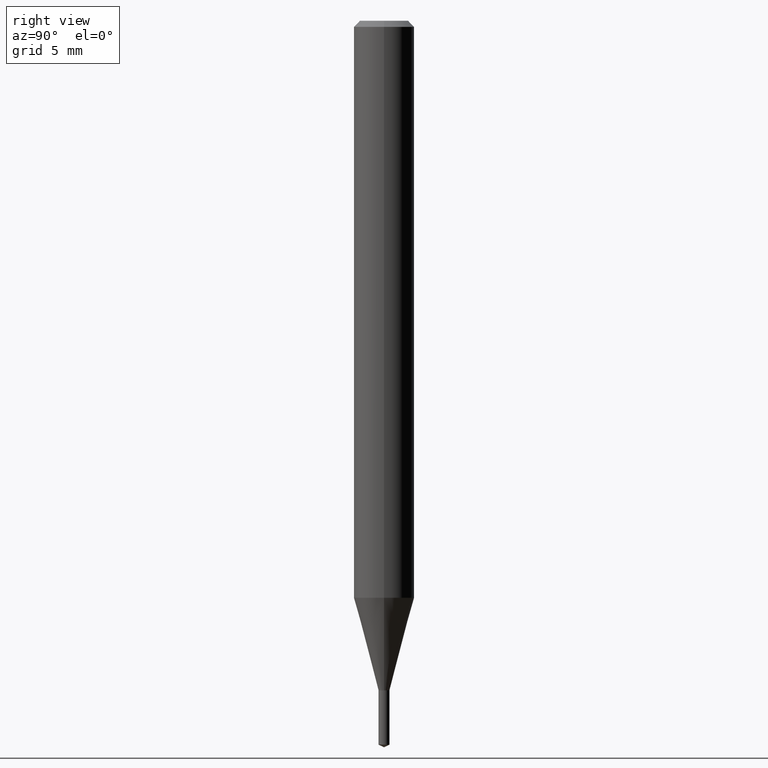
[diagram: clean part render]
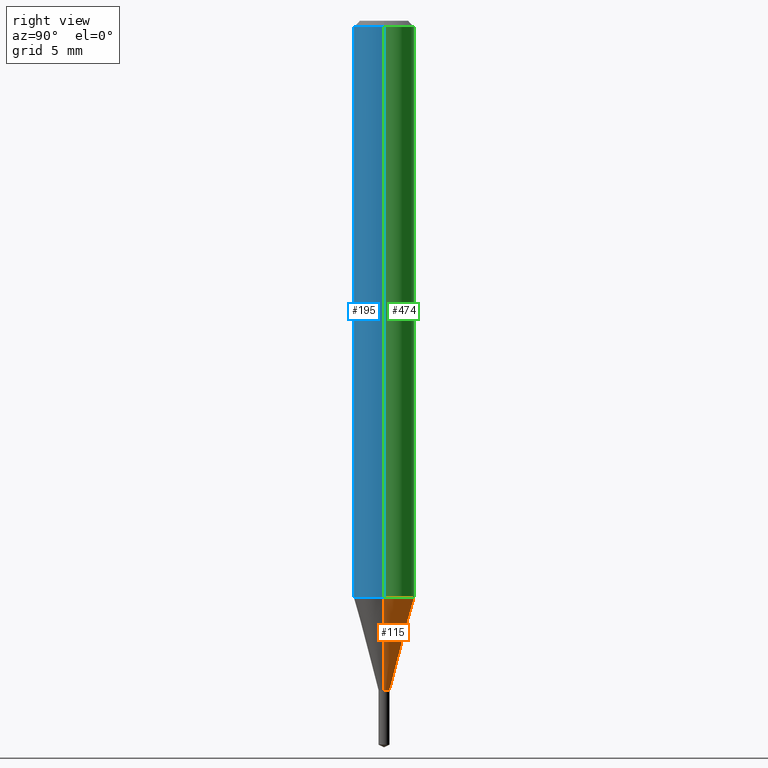
[diagram: same view with three faces highlighted in distinct colors, each labeled with its STEP entity id]
A machine part, right view with three faces highlighted in distinct colors.
Their STEP definitions:

[orange] entity #115 — the highlighted conical surface has half-angle 15 deg.
#5 = VERTEX_POINT ( 'NONE', #419 ) ;
#8 = LINE ( 'NONE', #307, #249 ) ;
#23 = DIRECTION ( 'NONE',  ( -2.445468806185136597E-29, 3.491481338843145583E-15, 1.000000000000000000 ) ) ;
#27 = EDGE_CURVE ( 'NONE', #70, #478, #196, .T. ) ;
#31 = VERTEX_POINT ( 'NONE', #74 ) ;
#70 = VERTEX_POINT ( 'NONE', #190 ) ;
#74 = CARTESIAN_POINT ( 'NONE',  ( -0.01124999999999999958, -4.357911297963569388E-15, -1.382600000000000273 ) ) ;
#82 = DIRECTION ( 'NONE',  ( 1.000000000000000000, -6.982962677686270655E-15, 0.000000000000000000 ) ) ;
#92 = AXIS2_PLACEMENT_3D ( 'NONE', #294, #397, #366 ) ;
#100 = ORIENTED_EDGE ( 'NONE', *, *, #27, .F. ) ;
#115 = ADVANCED_FACE ( 'NONE', ( #137 ), #326, .T. ) ;
#130 = CARTESIAN_POINT ( 'NONE',  ( -0.06250000000000013878, -3.715425619534625420E-15, -1.191332396112100511 ) ) ;
#137 = FACE_OUTER_BOUND ( 'NONE', #175, .T. ) ;
#175 = EDGE_LOOP ( 'NONE', ( #469, #212, #100, #298 ) ) ;
#190 = CARTESIAN_POINT ( 'NONE',  ( 0.06250000000000013878, -4.595949996740082072E-15, -1.191332396112100511 ) ) ;
#196 = CIRCLE ( 'NONE', #394, 0.06250000000000013878 ) ;
#212 = ORIENTED_EDGE ( 'NONE', *, *, #275, .T. ) ;
#225 = AXIS2_PLACEMENT_3D ( 'NONE', #369, #23, #402 ) ;
#226 = VECTOR ( 'NONE', #265, 39.37007874015748854 ) ;
#249 = VECTOR ( 'NONE', #270, 39.37007874015748854 ) ;
#265 = DIRECTION ( 'NONE',  ( -0.2588190451025279559, 5.211531920934590485E-15, 0.9659258262890662028 ) ) ;
#270 = DIRECTION ( 'NONE',  ( 0.2588190451025279559, 1.565188264969568522E-15, 0.9659258262890662028 ) ) ;
#275 = EDGE_CURVE ( 'NONE', #31, #478, #342, .T. ) ;
#294 = CARTESIAN_POINT ( 'NONE',  ( 3.381105171431570264E-29, -4.827322099084534150E-15, -1.382600000000000273 ) ) ;
#298 = ORIENTED_EDGE ( 'NONE', *, *, #387, .F. ) ;
#307 = CARTESIAN_POINT ( 'NONE',  ( 0.01124999999999999958, -4.905880429208504178E-15, -1.382600000000000273 ) ) ;
#326 = CONICAL_SURFACE ( 'NONE', #225, 0.01124999999999999958, 0.2617993877991569573 ) ;
#329 = EDGE_CURVE ( 'NONE', #5, #31, #335, .T. ) ;
#335 = CIRCLE ( 'NONE', #92, 0.01124999999999999958 ) ;
#342 = LINE ( 'NONE', #353, #226 ) ;
#352 = DIRECTION ( 'NONE',  ( -2.445468806185136597E-29, 3.491481338843145583E-15, 1.000000000000000000 ) ) ;
#353 = CARTESIAN_POINT ( 'NONE',  ( -0.01124999999999999958, -4.747386041311522217E-15, -1.382600000000000273 ) ) ;
#366 = DIRECTION ( 'NONE',  ( 1.000000000000000000, -6.982962677686224901E-15, 0.000000000000000000 ) ) ;
#369 = CARTESIAN_POINT ( 'NONE',  ( 3.381105171431570264E-29, -4.827322099084534150E-15, -1.382600000000000273 ) ) ;
#385 = CARTESIAN_POINT ( 'NONE',  ( 2.913366212489936565E-29, -4.159514829384688825E-15, -1.191332396112100511 ) ) ;
#387 = EDGE_CURVE ( 'NONE', #5, #70, #8, .T. ) ;
#394 = AXIS2_PLACEMENT_3D ( 'NONE', #385, #352, #82 ) ;
#397 = DIRECTION ( 'NONE',  ( -2.445468806185136597E-29, 3.491481338843145583E-15, 1.000000000000000000 ) ) ;
#402 = DIRECTION ( 'NONE',  ( 1.000000000000000000, -6.982962677686224901E-15, 0.000000000000000000 ) ) ;
#419 = CARTESIAN_POINT ( 'NONE',  ( 0.01124999999999999958, -4.905880429208504178E-15, -1.382600000000000273 ) ) ;
#469 = ORIENTED_EDGE ( 'NONE', *, *, #329, .T. ) ;
#478 = VERTEX_POINT ( 'NONE', #130 ) ;

[blue] entity #195 — the highlighted cylindrical surface (edge-blend (fillet) strip) has radius 1.5875 mm, axis along (-0, 0, 1).
#24 = DIRECTION ( 'NONE',  ( -2.445468806185136597E-29, 3.491481338843145583E-15, 1.000000000000000000 ) ) ;
#28 = VERTEX_POINT ( 'NONE', #456 ) ;
#32 = DIRECTION ( 'NONE',  ( 1.000000000000000000, -6.982962677686266711E-15, 4.876176775795935793E-29 ) ) ;
#35 = DIRECTION ( 'NONE',  ( -2.445468806185136597E-29, 3.491481338843145583E-15, 1.000000000000000000 ) ) ;
#40 = LINE ( 'NONE', #383, #55 ) ;
#42 = ORIENTED_EDGE ( 'NONE', *, *, #75, .T. ) ;
#43 = AXIS2_PLACEMENT_3D ( 'NONE', #253, #35, #482 ) ;
#50 = LINE ( 'NONE', #273, #199 ) ;
#55 = VECTOR ( 'NONE', #424, 39.37007874015748143 ) ;
#70 = VERTEX_POINT ( 'NONE', #190 ) ;
#75 = EDGE_CURVE ( 'NONE', #478, #70, #258, .T. ) ;
#101 = CARTESIAN_POINT ( 'NONE',  ( -0.06250000000000000000, -1.657489963210050197E-15, -0.01250000000000008223 ) ) ;
#130 = CARTESIAN_POINT ( 'NONE',  ( -0.06250000000000013878, -3.715425619534625420E-15, -1.191332396112100511 ) ) ;
#132 = VERTEX_POINT ( 'NONE', #101 ) ;
#142 = ORIENTED_EDGE ( 'NONE', *, *, #186, .F. ) ;
#186 = EDGE_CURVE ( 'NONE', #132, #28, #398, .T. ) ;
#190 = CARTESIAN_POINT ( 'NONE',  ( 0.06250000000000013878, -4.595949996740082072E-15, -1.191332396112100511 ) ) ;
#194 = DIRECTION ( 'NONE',  ( -2.445468806185136877E-29, 3.491481338843145188E-15, 1.000000000000000000 ) ) ;
#195 = ADVANCED_FACE ( 'NONE', ( #359 ), #401, .T. ) ;
#199 = VECTOR ( 'NONE', #194, 39.37007874015748143 ) ;
#213 = DIRECTION ( 'NONE',  ( -2.445468806185136597E-29, 3.491481338843145583E-15, 1.000000000000000000 ) ) ;
#251 = EDGE_CURVE ( 'NONE', #478, #132, #40, .T. ) ;
#253 = CARTESIAN_POINT ( 'NONE',  ( 2.913366212489936565E-29, -4.159514829384688825E-15, -1.191332396112100511 ) ) ;
#258 = CIRCLE ( 'NONE', #43, 0.06250000000000013878 ) ;
#266 = AXIS2_PLACEMENT_3D ( 'NONE', #468, #24, #280 ) ;
#267 = ORIENTED_EDGE ( 'NONE', *, *, #251, .F. ) ;
#269 = EDGE_CURVE ( 'NONE', #70, #28, #50, .T. ) ;
#273 = CARTESIAN_POINT ( 'NONE',  ( 0.06250000000000006939, -4.364351673553921624E-16, 3.047610484872463374E-30 ) ) ;
#280 = DIRECTION ( 'NONE',  ( 1.000000000000000000, -6.982962677686266711E-15, 0.000000000000000000 ) ) ;
#359 = FACE_OUTER_BOUND ( 'NONE', #390, .T. ) ;
#383 = CARTESIAN_POINT ( 'NONE',  ( -0.06250000000000006939, 4.440892098500631092E-16, -3.074334431409319267E-30 ) ) ;
#390 = EDGE_LOOP ( 'NONE', ( #267, #42, #410, #142 ) ) ;
#398 = CIRCLE ( 'NONE', #266, 0.06250000000000000000 ) ;
#401 = CYLINDRICAL_SURFACE ( 'NONE', #443, 0.06250000000000006939 ) ;
#410 = ORIENTED_EDGE ( 'NONE', *, *, #269, .T. ) ;
#424 = DIRECTION ( 'NONE',  ( -2.445468806185136877E-29, 3.491481338843145188E-15, 1.000000000000000000 ) ) ;
#443 = AXIS2_PLACEMENT_3D ( 'NONE', #448, #213, #32 ) ;
#448 = CARTESIAN_POINT ( 'NONE',  ( 0.000000000000000000, 0.000000000000000000, 0.000000000000000000 ) ) ;
#456 = CARTESIAN_POINT ( 'NONE',  ( 0.06250000000000000000, -4.800786840909312308E-16, -0.01250000000000008223 ) ) ;
#468 = CARTESIAN_POINT ( 'NONE',  ( 3.056836007731440977E-31, -4.364351673553961068E-17, -0.01250000000000008223 ) ) ;
#478 = VERTEX_POINT ( 'NONE', #130 ) ;
#482 = DIRECTION ( 'NONE',  ( 1.000000000000000000, -6.982962677686270655E-15, 0.000000000000000000 ) ) ;

[green] entity #474 — the highlighted cylindrical surface (edge-blend (fillet) strip) has radius 1.5875 mm, axis along (-0, 0, 1).
#3 = AXIS2_PLACEMENT_3D ( 'NONE', #112, #71, #380 ) ;
#18 = AXIS2_PLACEMENT_3D ( 'NONE', #205, #471, #58 ) ;
#27 = EDGE_CURVE ( 'NONE', #70, #478, #196, .T. ) ;
#28 = VERTEX_POINT ( 'NONE', #456 ) ;
#40 = LINE ( 'NONE', #383, #55 ) ;
#50 = LINE ( 'NONE', #273, #199 ) ;
#55 = VECTOR ( 'NONE', #424, 39.37007874015748143 ) ;
#58 = DIRECTION ( 'NONE',  ( 1.000000000000000000, -6.982962677686266711E-15, 4.876176775795935793E-29 ) ) ;
#70 = VERTEX_POINT ( 'NONE', #190 ) ;
#71 = DIRECTION ( 'NONE',  ( -2.445468806185136597E-29, 3.491481338843145583E-15, 1.000000000000000000 ) ) ;
#82 = DIRECTION ( 'NONE',  ( 1.000000000000000000, -6.982962677686270655E-15, 0.000000000000000000 ) ) ;
#101 = CARTESIAN_POINT ( 'NONE',  ( -0.06250000000000000000, -1.657489963210050197E-15, -0.01250000000000008223 ) ) ;
#112 = CARTESIAN_POINT ( 'NONE',  ( 3.056836007731440977E-31, -4.364351673553961068E-17, -0.01250000000000008223 ) ) ;
#130 = CARTESIAN_POINT ( 'NONE',  ( -0.06250000000000013878, -3.715425619534625420E-15, -1.191332396112100511 ) ) ;
#132 = VERTEX_POINT ( 'NONE', #101 ) ;
#166 = FACE_OUTER_BOUND ( 'NONE', #454, .T. ) ;
#182 = ORIENTED_EDGE ( 'NONE', *, *, #27, .T. ) ;
#187 = ORIENTED_EDGE ( 'NONE', *, *, #251, .T. ) ;
#190 = CARTESIAN_POINT ( 'NONE',  ( 0.06250000000000013878, -4.595949996740082072E-15, -1.191332396112100511 ) ) ;
#194 = DIRECTION ( 'NONE',  ( -2.445468806185136877E-29, 3.491481338843145188E-15, 1.000000000000000000 ) ) ;
#196 = CIRCLE ( 'NONE', #394, 0.06250000000000013878 ) ;
#199 = VECTOR ( 'NONE', #194, 39.37007874015748143 ) ;
#205 = CARTESIAN_POINT ( 'NONE',  ( 0.000000000000000000, 0.000000000000000000, 0.000000000000000000 ) ) ;
#251 = EDGE_CURVE ( 'NONE', #478, #132, #40, .T. ) ;
#269 = EDGE_CURVE ( 'NONE', #70, #28, #50, .T. ) ;
#273 = CARTESIAN_POINT ( 'NONE',  ( 0.06250000000000006939, -4.364351673553921624E-16, 3.047610484872463374E-30 ) ) ;
#320 = CYLINDRICAL_SURFACE ( 'NONE', #18, 0.06250000000000006939 ) ;
#352 = DIRECTION ( 'NONE',  ( -2.445468806185136597E-29, 3.491481338843145583E-15, 1.000000000000000000 ) ) ;
#380 = DIRECTION ( 'NONE',  ( 1.000000000000000000, -6.982962677686266711E-15, 0.000000000000000000 ) ) ;
#383 = CARTESIAN_POINT ( 'NONE',  ( -0.06250000000000006939, 4.440892098500631092E-16, -3.074334431409319267E-30 ) ) ;
#385 = CARTESIAN_POINT ( 'NONE',  ( 2.913366212489936565E-29, -4.159514829384688825E-15, -1.191332396112100511 ) ) ;
#394 = AXIS2_PLACEMENT_3D ( 'NONE', #385, #352, #82 ) ;
#412 = ORIENTED_EDGE ( 'NONE', *, *, #269, .F. ) ;
#424 = DIRECTION ( 'NONE',  ( -2.445468806185136877E-29, 3.491481338843145188E-15, 1.000000000000000000 ) ) ;
#430 = EDGE_CURVE ( 'NONE', #28, #132, #440, .T. ) ;
#432 = ORIENTED_EDGE ( 'NONE', *, *, #430, .F. ) ;
#440 = CIRCLE ( 'NONE', #3, 0.06250000000000000000 ) ;
#454 = EDGE_LOOP ( 'NONE', ( #182, #187, #432, #412 ) ) ;
#456 = CARTESIAN_POINT ( 'NONE',  ( 0.06250000000000000000, -4.800786840909312308E-16, -0.01250000000000008223 ) ) ;
#471 = DIRECTION ( 'NONE',  ( -2.445468806185136597E-29, 3.491481338843145583E-15, 1.000000000000000000 ) ) ;
#474 = ADVANCED_FACE ( 'NONE', ( #166 ), #320, .T. ) ;
#478 = VERTEX_POINT ( 'NONE', #130 ) ;